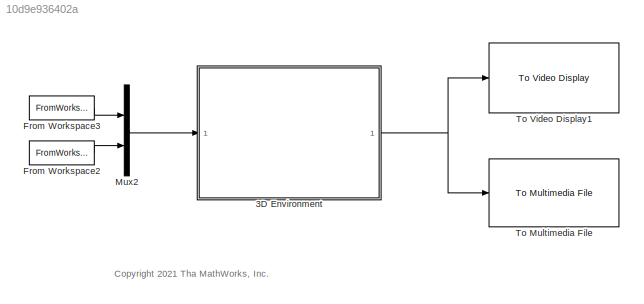
MODEL slx_10d9e936402a
KIND model
CONFIG AbsTol = auto
CONFIG EnableMultiTasking = off
CONFIG FixedStep = auto
CONFIG MaxStep = auto
CONFIG MinStep = auto
CONFIG RelTol = 1e-3
CONFIG SampleTimeConstraint = Unconstrained
CONFIG SolverName = VariableStepAuto
CONFIG StartTime = 0.0
CONFIG StopTime = Tf
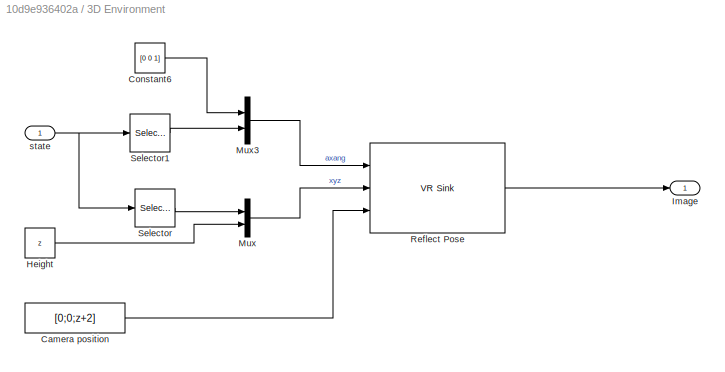
BLOCK [SubSystem] 3D Environment
  Ports = [1, 1]
  RequestExecContextInheritance = off
BLOCK [Constant] 3D Environment/Camera position
  Value = [0;0;z+2]
BLOCK [Constant] 3D Environment/Constant6
  Value = [0 0 1]
BLOCK [Constant] 3D Environment/Height
  Value = z
BLOCK [Outport] 3D Environment/Image
BLOCK [Mux] 3D Environment/Mux
  DisplayOption = bar
  Inputs = 2
  Ports = [2, 1]
BLOCK [Mux] 3D Environment/Mux3
  DisplayOption = bar
  Inputs = 2
  Ports = [2, 1]
BLOCK [Reference] 3D Environment/Reflect Pose  REF=vrlib/VR Sink
  InstantiateOnLoad = on
  Ports = [3, 1]
  SourceBlock = vrlib/VR Sink
  SourceProductBaseCode = SL
  SourceType = Virtual Reality Sink
BLOCK [Selector] 3D Environment/Selector
  IndexOptions = Index vector (dialog)
  Indices = [1 2]
  InputPortWidth = 3
  OutputSizes = 1
  Ports = [1, 1]
BLOCK [Selector] 3D Environment/Selector1
  IndexOptions = Index vector (dialog)
  Indices = 3
  InputPortWidth = 3
  OutputSizes = 1
  Ports = [1, 1]
BLOCK [Inport] 3D Environment/state
BLOCK [FromWorkspace] From Workspace2
  SampleTime = 0.1
  VariableName = tsThetaTrain
BLOCK [FromWorkspace] From Workspace3
  SampleTime = 0.1
  VariableName = tsXYTrain
BLOCK [Mux] Mux2
  DisplayOption = bar
  Inputs = 2
  Ports = [2, 1]
BLOCK [Reference] To Multimedia File  REF=dspvision/To Multimedia File
  Ports = [1]
  SourceBlock = dspvision/To Multimedia File
  SourceProductBaseCode = DS,HW,VP
  SourceType = To Multimedia File
BLOCK [Reference] To Video Display1  REF=visionsinks/To Video Display
  Ports = [1]
  SourceBlock = visionsinks/To Video Display
  SourceProductBaseCode = VP
  SourceType = To Video Display
ANNOTATION (root): <copyright redacted>
LINE 3D Environment/Camera position:1 -> 3D Environment/Reflect Pose:3
LINE 3D Environment/Constant6:1 -> 3D Environment/Mux3:1
LINE 3D Environment/Height:1 -> 3D Environment/Mux:2
LINE 3D Environment/Mux3:1 -> 3D Environment/Reflect Pose:1
LINE 3D Environment/Mux:1 -> 3D Environment/Reflect Pose:2
LINE 3D Environment/Reflect Pose:1 -> 3D Environment/Image:1
LINE 3D Environment/Selector1:1 -> 3D Environment/Mux3:2
LINE 3D Environment/Selector:1 -> 3D Environment/Mux:1
NET 3D Environment/state:1 -> 3D Environment/Selector1:1, 3D Environment/Selector:1
NET 3D Environment:1 -> To Multimedia File:1, To Video Display1:1
LINE From Workspace2:1 -> Mux2:2
LINE From Workspace3:1 -> Mux2:1
LINE Mux2:1 -> 3D Environment:1
note: NET lines group one-source signal fan-out (src -> all destinations, sorted); 1:1 wires keep LINE
